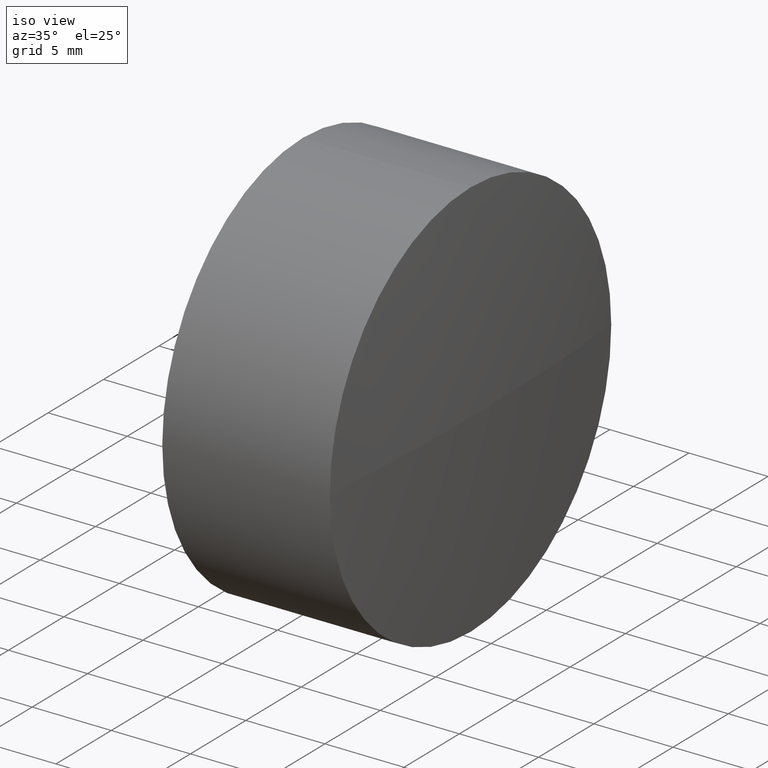
[diagram: clean part render]
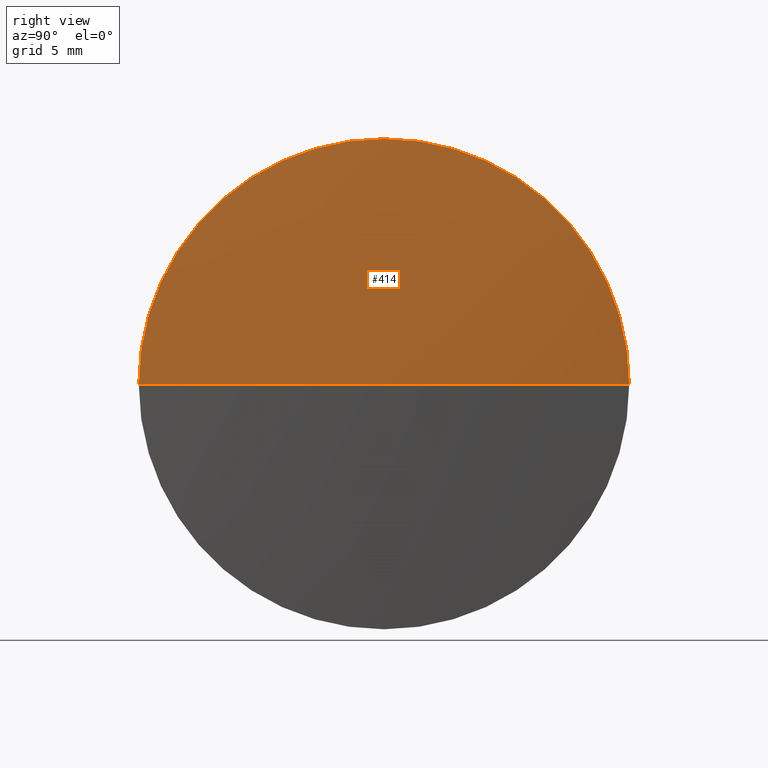
[diagram: tour spotlight — one face highlighted and labeled with its STEP entity id]
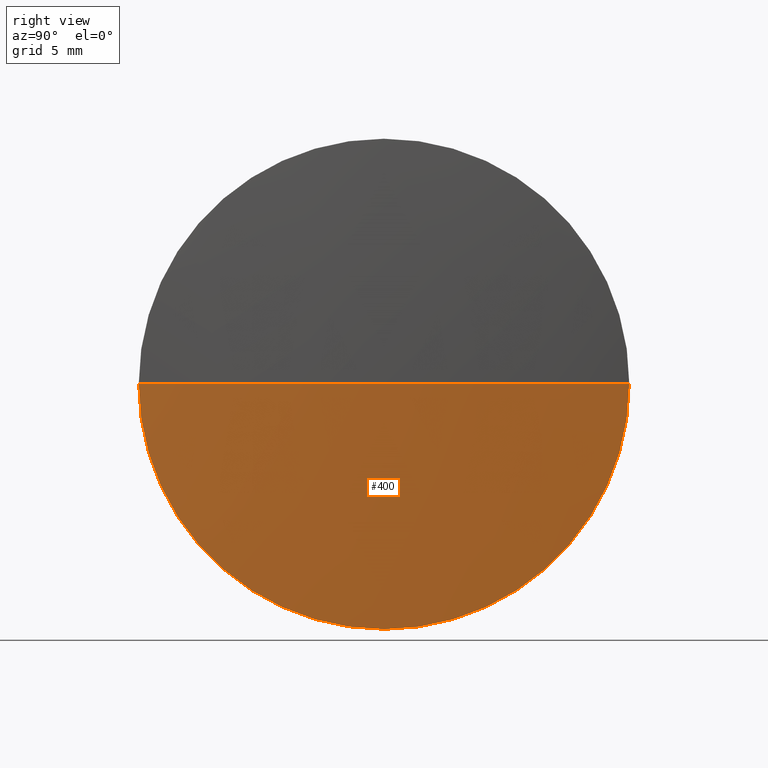
[diagram: tour spotlight — one face highlighted and labeled with its STEP entity id]
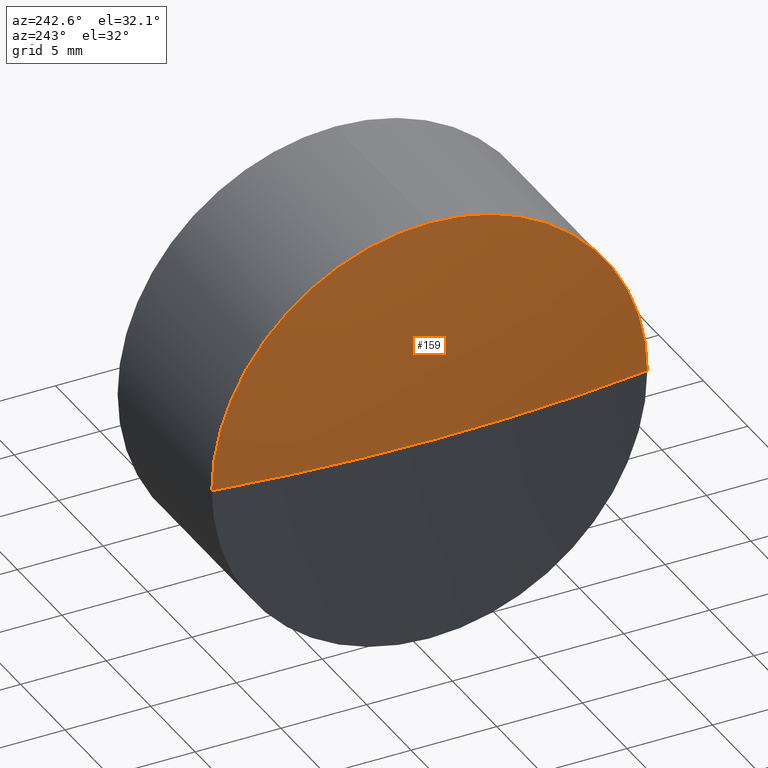
[diagram: tour spotlight — one face highlighted and labeled with its STEP entity id]
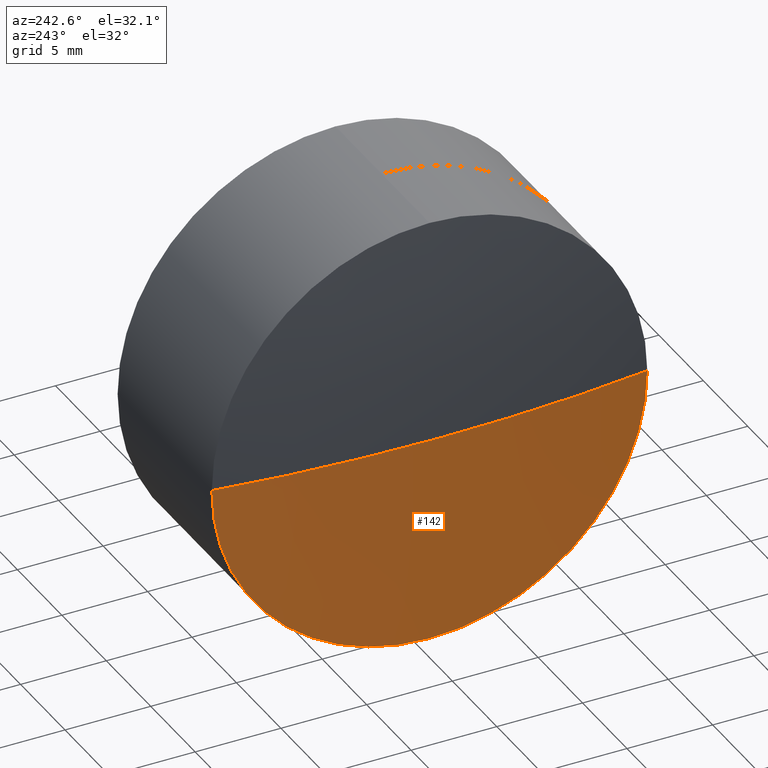
[diagram: tour spotlight — one face highlighted and labeled with its STEP entity id]
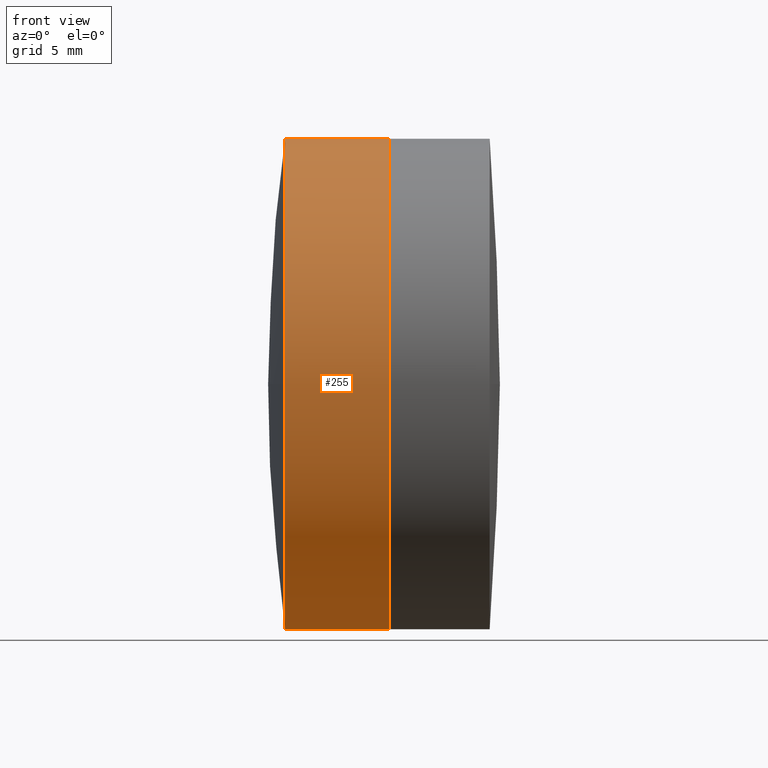
[diagram: tour spotlight — one face highlighted and labeled with its STEP entity id]
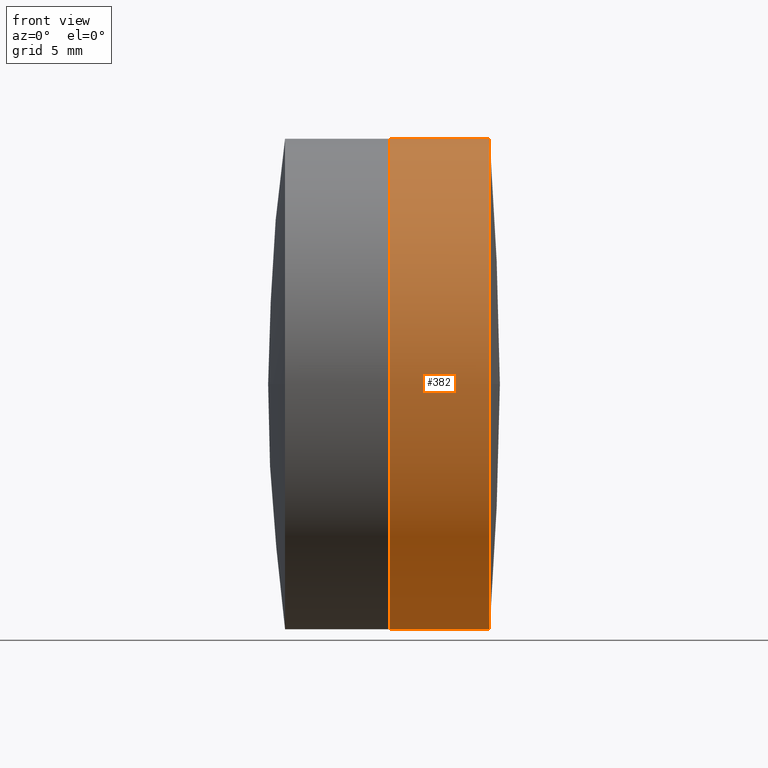
[diagram: tour spotlight — one face highlighted and labeled with its STEP entity id]
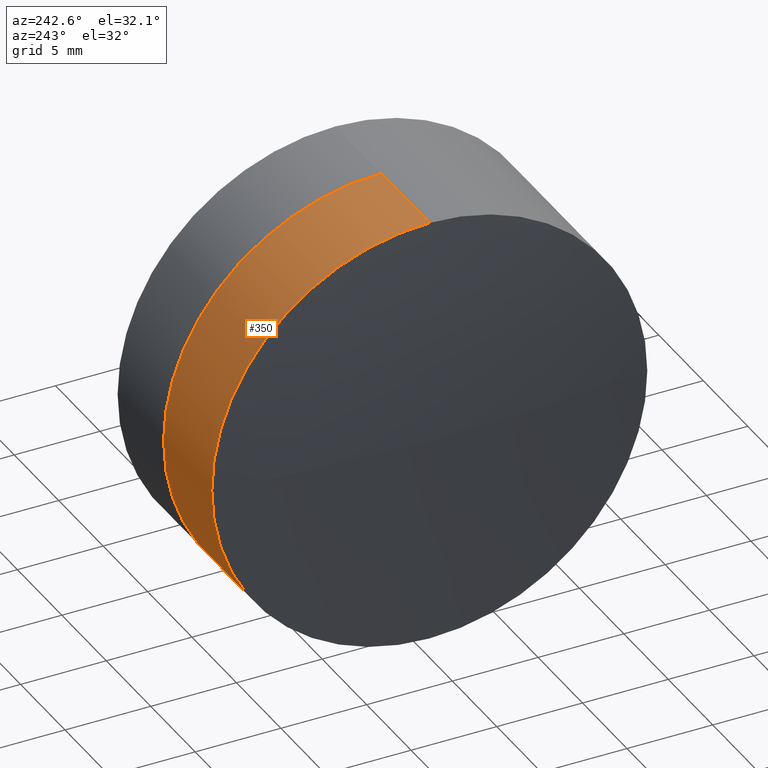
[diagram: tour spotlight — one face highlighted and labeled with its STEP entity id]
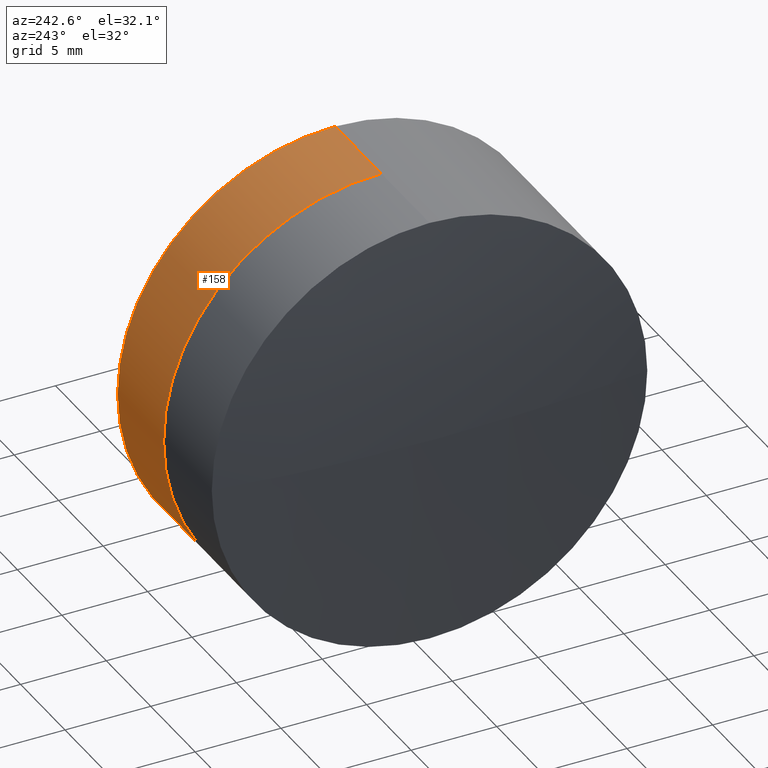
[diagram: tour spotlight — one face highlighted and labeled with its STEP entity id]
A machine part: a face-by-face anatomy tour. The part has 12 B-rep faces; the first image is the clean iso view, then the 8 largest visible faces are spotlighted one at a time (largest first), each with its STEP entity span.

Face 1 — right view, entity #414. In plain terms, the highlighted spherical surface has radius 152.82 mm.
Definition (entity closure, byte-faithful):
#4 = DIRECTION ( 'NONE',  ( -1.000000000000000000, -0.000000000000000000, -0.000000000000000000 ) ) ;
#6 = CARTESIAN_POINT ( 'NONE',  ( -90.98594420630271884, 14.56038547118956927, 0.000000000000000000 ) ) ;
#12 = ORIENTED_EDGE ( 'NONE', *, *, #36, .F. ) ;
#15 = VERTEX_POINT ( 'NONE', #348 ) ;
#21 = DIRECTION ( 'NONE',  ( -0.000000000000000000, 0.000000000000000000, -1.000000000000000000 ) ) ;
#36 = EDGE_CURVE ( 'NONE', #220, #15, #314, .T. ) ;
#83 = CARTESIAN_POINT ( 'NONE',  ( -90.98594420630271884, 14.56038547118956927, 0.000000000000000000 ) ) ;
#97 = DIRECTION ( 'NONE',  ( 0.000000000000000000, 1.000000000000000000, 1.224646799147353207E-16 ) ) ;
#101 = ORIENTED_EDGE ( 'NONE', *, *, #175, .T. ) ;
#105 = CIRCLE ( 'NONE', #353, 12.69999999999999929 ) ;
#111 = DIRECTION ( 'NONE',  ( 1.000000000000000000, 0.000000000000000000, 0.000000000000000000 ) ) ;
#114 = DIRECTION ( 'NONE',  ( -0.000000000000000000, 0.000000000000000000, 1.000000000000000000 ) ) ;
#120 = CARTESIAN_POINT ( 'NONE',  ( -90.98594420630270463, 27.26038547118939093, 0.000000000000000000 ) ) ;
#128 = EDGE_CURVE ( 'NONE', #15, #426, #174, .T. ) ;
#144 = AXIS2_PLACEMENT_3D ( 'NONE', #6, #4, #155 ) ;
#155 = DIRECTION ( 'NONE',  ( 0.000000000000000000, 0.000000000000000000, 1.000000000000000000 ) ) ;
#170 = ORIENTED_EDGE ( 'NONE', *, *, #128, .F. ) ;
#174 = CIRCLE ( 'NONE', #144, 12.69999999999999929 ) ;
#175 = EDGE_CURVE ( 'NONE', #220, #411, #418, .T. ) ;
#189 = CARTESIAN_POINT ( 'NONE',  ( -90.45731756671344215, 14.56038547118957815, 0.000000000000000000 ) ) ;
#205 = AXIS2_PLACEMENT_3D ( 'NONE', #284, #114, #111 ) ;
#220 = VERTEX_POINT ( 'NONE', #189 ) ;
#229 = DIRECTION ( 'NONE',  ( -1.000000000000000000, -0.000000000000000000, -0.000000000000000000 ) ) ;
#284 = CARTESIAN_POINT ( 'NONE',  ( -243.2773175667133785, 14.56038547118956927, 0.000000000000000000 ) ) ;
#293 = CARTESIAN_POINT ( 'NONE',  ( -90.98594420630271884, 14.56038547118956927, 12.69999999999999929 ) ) ;
#314 = CIRCLE ( 'NONE', #442, 152.8199999999999648 ) ;
#321 = ORIENTED_EDGE ( 'NONE', *, *, #417, .F. ) ;
#336 = CARTESIAN_POINT ( 'NONE',  ( -243.2773175667133785, 14.56038547118956927, 0.000000000000000000 ) ) ;
#339 = DIRECTION ( 'NONE',  ( 0.000000000000000000, 1.000000000000000000, 0.000000000000000000 ) ) ;
#345 = DIRECTION ( 'NONE',  ( 0.000000000000000000, 1.224646799147353207E-16, -1.000000000000000000 ) ) ;
#348 = CARTESIAN_POINT ( 'NONE',  ( -90.98594420630270463, 1.860385471189745177, -1.555301434917116936E-15 ) ) ;
#353 = AXIS2_PLACEMENT_3D ( 'NONE', #83, #229, #397 ) ;
#386 = EDGE_LOOP ( 'NONE', ( #12, #101, #321, #170 ) ) ;
#393 = FACE_OUTER_BOUND ( 'NONE', #386, .T. ) ;
#397 = DIRECTION ( 'NONE',  ( 0.000000000000000000, 0.000000000000000000, 1.000000000000000000 ) ) ;
#406 = SPHERICAL_SURFACE ( 'NONE', #416, 152.8199999999999648 ) ;
#410 = CARTESIAN_POINT ( 'NONE',  ( -243.2773175667133785, 14.56038547118956927, 0.000000000000000000 ) ) ;
#411 = VERTEX_POINT ( 'NONE', #120 ) ;
#414 = ADVANCED_FACE ( 'NONE', ( #393 ), #406, .T. ) ;
#416 = AXIS2_PLACEMENT_3D ( 'NONE', #336, #21, #339 ) ;
#417 = EDGE_CURVE ( 'NONE', #426, #411, #105, .T. ) ;
#418 = CIRCLE ( 'NONE', #205, 152.8199999999999648 ) ;
#426 = VERTEX_POINT ( 'NONE', #293 ) ;
#442 = AXIS2_PLACEMENT_3D ( 'NONE', #410, #345, #97 ) ;

Face 2 — right view, entity #400. In plain terms, the highlighted spherical surface has radius 152.82 mm.
Definition (entity closure, byte-faithful):
#15 = VERTEX_POINT ( 'NONE', #348 ) ;
#20 = CARTESIAN_POINT ( 'NONE',  ( -90.98594420630271884, 14.56038547118956927, 0.000000000000000000 ) ) ;
#28 = CARTESIAN_POINT ( 'NONE',  ( -243.2773175667133785, 14.56038547118956927, 0.000000000000000000 ) ) ;
#36 = EDGE_CURVE ( 'NONE', #220, #15, #314, .T. ) ;
#49 = CARTESIAN_POINT ( 'NONE',  ( -90.98594420630271884, 14.56038547118957105, -12.69999999999999929 ) ) ;
#76 = CARTESIAN_POINT ( 'NONE',  ( -90.98594420630271884, 14.56038547118956927, 0.000000000000000000 ) ) ;
#82 = DIRECTION ( 'NONE',  ( 0.000000000000000000, 0.000000000000000000, 1.000000000000000000 ) ) ;
#89 = DIRECTION ( 'NONE',  ( 0.000000000000000000, 1.000000000000000000, 0.000000000000000000 ) ) ;
#97 = DIRECTION ( 'NONE',  ( 0.000000000000000000, 1.000000000000000000, 1.224646799147353207E-16 ) ) ;
#111 = DIRECTION ( 'NONE',  ( 1.000000000000000000, 0.000000000000000000, 0.000000000000000000 ) ) ;
#114 = DIRECTION ( 'NONE',  ( -0.000000000000000000, 0.000000000000000000, 1.000000000000000000 ) ) ;
#120 = CARTESIAN_POINT ( 'NONE',  ( -90.98594420630270463, 27.26038547118939093, 0.000000000000000000 ) ) ;
#124 = DIRECTION ( 'NONE',  ( -1.000000000000000000, -0.000000000000000000, -0.000000000000000000 ) ) ;
#131 = FACE_OUTER_BOUND ( 'NONE', #136, .T. ) ;
#136 = EDGE_LOOP ( 'NONE', ( #180, #286, #378, #443 ) ) ;
#145 = AXIS2_PLACEMENT_3D ( 'NONE', #20, #124, #82 ) ;
#151 = VERTEX_POINT ( 'NONE', #49 ) ;
#161 = CIRCLE ( 'NONE', #145, 12.69999999999999929 ) ;
#175 = EDGE_CURVE ( 'NONE', #220, #411, #418, .T. ) ;
#180 = ORIENTED_EDGE ( 'NONE', *, *, #175, .F. ) ;
#189 = CARTESIAN_POINT ( 'NONE',  ( -90.45731756671344215, 14.56038547118957815, 0.000000000000000000 ) ) ;
#191 = EDGE_CURVE ( 'NONE', #411, #151, #288, .T. ) ;
#194 = DIRECTION ( 'NONE',  ( -0.000000000000000000, 0.000000000000000000, -1.000000000000000000 ) ) ;
#205 = AXIS2_PLACEMENT_3D ( 'NONE', #284, #114, #111 ) ;
#220 = VERTEX_POINT ( 'NONE', #189 ) ;
#252 = DIRECTION ( 'NONE',  ( -1.000000000000000000, -0.000000000000000000, -0.000000000000000000 ) ) ;
#272 = EDGE_CURVE ( 'NONE', #151, #15, #161, .T. ) ;
#284 = CARTESIAN_POINT ( 'NONE',  ( -243.2773175667133785, 14.56038547118956927, 0.000000000000000000 ) ) ;
#286 = ORIENTED_EDGE ( 'NONE', *, *, #36, .T. ) ;
#288 = CIRCLE ( 'NONE', #349, 12.69999999999999929 ) ;
#314 = CIRCLE ( 'NONE', #442, 152.8199999999999648 ) ;
#319 = AXIS2_PLACEMENT_3D ( 'NONE', #28, #194, #89 ) ;
#345 = DIRECTION ( 'NONE',  ( 0.000000000000000000, 1.224646799147353207E-16, -1.000000000000000000 ) ) ;
#348 = CARTESIAN_POINT ( 'NONE',  ( -90.98594420630270463, 1.860385471189745177, -1.555301434917116936E-15 ) ) ;
#349 = AXIS2_PLACEMENT_3D ( 'NONE', #76, #252, #390 ) ;
#366 = SPHERICAL_SURFACE ( 'NONE', #319, 152.8199999999999648 ) ;
#378 = ORIENTED_EDGE ( 'NONE', *, *, #272, .F. ) ;
#390 = DIRECTION ( 'NONE',  ( 0.000000000000000000, 0.000000000000000000, 1.000000000000000000 ) ) ;
#400 = ADVANCED_FACE ( 'NONE', ( #131 ), #366, .T. ) ;
#410 = CARTESIAN_POINT ( 'NONE',  ( -243.2773175667133785, 14.56038547118956927, 0.000000000000000000 ) ) ;
#411 = VERTEX_POINT ( 'NONE', #120 ) ;
#418 = CIRCLE ( 'NONE', #205, 152.8199999999999648 ) ;
#442 = AXIS2_PLACEMENT_3D ( 'NONE', #410, #345, #97 ) ;
#443 = ORIENTED_EDGE ( 'NONE', *, *, #191, .F. ) ;

Face 3 — auxiliary view, entity #159. In plain terms, the highlighted spherical surface has radius 92.4 mm.
Definition (entity closure, byte-faithful):
#8 = VERTEX_POINT ( 'NONE', #307 ) ;
#13 = DIRECTION ( 'NONE',  ( -0.000000000000000000, 0.000000000000000000, 1.000000000000000000 ) ) ;
#45 = VERTEX_POINT ( 'NONE', #64 ) ;
#50 = ORIENTED_EDGE ( 'NONE', *, *, #446, .F. ) ;
#60 = DIRECTION ( 'NONE',  ( 0.000000000000000000, 1.224646799147353207E-16, -1.000000000000000000 ) ) ;
#64 = CARTESIAN_POINT ( 'NONE',  ( -102.4573175667134137, 14.56038547118957460, 0.000000000000000000 ) ) ;
#92 = CARTESIAN_POINT ( 'NONE',  ( -10.05731756671340804, 14.56038547118956927, 0.000000000000000000 ) ) ;
#104 = AXIS2_PLACEMENT_3D ( 'NONE', #183, #287, #384 ) ;
#117 = CARTESIAN_POINT ( 'NONE',  ( -101.5803747708955740, 1.860385471189575091, -1.555301434917137841E-15 ) ) ;
#141 = EDGE_CURVE ( 'NONE', #8, #153, #425, .T. ) ;
#153 = VERTEX_POINT ( 'NONE', #324 ) ;
#159 = ADVANCED_FACE ( 'NONE', ( #217 ), #427, .T. ) ;
#177 = DIRECTION ( 'NONE',  ( -0.000000000000000000, 0.000000000000000000, -1.000000000000000000 ) ) ;
#179 = CIRCLE ( 'NONE', #259, 92.40000000000000568 ) ;
#183 = CARTESIAN_POINT ( 'NONE',  ( -101.5803747708955882, 14.56038547118956927, 0.000000000000000000 ) ) ;
#217 = FACE_OUTER_BOUND ( 'NONE', #275, .T. ) ;
#231 = CARTESIAN_POINT ( 'NONE',  ( -101.5803747708955882, 14.56038547118956927, 0.000000000000000000 ) ) ;
#233 = AXIS2_PLACEMENT_3D ( 'NONE', #280, #177, #420 ) ;
#235 = ORIENTED_EDGE ( 'NONE', *, *, #246, .T. ) ;
#237 = ORIENTED_EDGE ( 'NONE', *, *, #141, .T. ) ;
#246 = EDGE_CURVE ( 'NONE', #412, #8, #380, .T. ) ;
#259 = AXIS2_PLACEMENT_3D ( 'NONE', #361, #13, #437 ) ;
#275 = EDGE_LOOP ( 'NONE', ( #50, #235, #237, #383 ) ) ;
#280 = CARTESIAN_POINT ( 'NONE',  ( -10.05731756671340804, 14.56038547118956927, 0.000000000000000000 ) ) ;
#287 = DIRECTION ( 'NONE',  ( -1.000000000000000000, -0.000000000000000000, -0.000000000000000000 ) ) ;
#296 = DIRECTION ( 'NONE',  ( 0.000000000000000000, 1.000000000000000000, 1.224646799147353454E-16 ) ) ;
#307 = CARTESIAN_POINT ( 'NONE',  ( -101.5803747708955882, 14.56038547118956927, 12.69999999999999929 ) ) ;
#309 = EDGE_CURVE ( 'NONE', #153, #45, #179, .T. ) ;
#324 = CARTESIAN_POINT ( 'NONE',  ( -101.5803747708955740, 27.26038547118956501, 0.000000000000000000 ) ) ;
#326 = AXIS2_PLACEMENT_3D ( 'NONE', #92, #60, #296 ) ;
#361 = CARTESIAN_POINT ( 'NONE',  ( -10.05731756671340804, 14.56038547118956927, 0.000000000000000000 ) ) ;
#369 = DIRECTION ( 'NONE',  ( 0.000000000000000000, 0.000000000000000000, 1.000000000000000000 ) ) ;
#370 = CIRCLE ( 'NONE', #326, 92.40000000000000568 ) ;
#380 = CIRCLE ( 'NONE', #436, 12.69999999999999929 ) ;
#383 = ORIENTED_EDGE ( 'NONE', *, *, #309, .T. ) ;
#384 = DIRECTION ( 'NONE',  ( 0.000000000000000000, 0.000000000000000000, 1.000000000000000000 ) ) ;
#412 = VERTEX_POINT ( 'NONE', #117 ) ;
#420 = DIRECTION ( 'NONE',  ( 0.000000000000000000, 1.000000000000000000, 0.000000000000000000 ) ) ;
#425 = CIRCLE ( 'NONE', #104, 12.69999999999999929 ) ;
#427 = SPHERICAL_SURFACE ( 'NONE', #233, 92.40000000000000568 ) ;
#434 = DIRECTION ( 'NONE',  ( -1.000000000000000000, -0.000000000000000000, -0.000000000000000000 ) ) ;
#436 = AXIS2_PLACEMENT_3D ( 'NONE', #231, #434, #369 ) ;
#437 = DIRECTION ( 'NONE',  ( 1.000000000000000000, 0.000000000000000000, 0.000000000000000000 ) ) ;
#446 = EDGE_CURVE ( 'NONE', #412, #45, #370, .T. ) ;

Face 4 — auxiliary view, entity #142. In plain terms, the highlighted spherical surface has radius 92.4 mm.
Definition (entity closure, byte-faithful):
#5 = ORIENTED_EDGE ( 'NONE', *, *, #72, .T. ) ;
#10 = FACE_OUTER_BOUND ( 'NONE', #413, .T. ) ;
#13 = DIRECTION ( 'NONE',  ( -0.000000000000000000, 0.000000000000000000, 1.000000000000000000 ) ) ;
#34 = ORIENTED_EDGE ( 'NONE', *, *, #446, .T. ) ;
#40 = EDGE_CURVE ( 'NONE', #276, #412, #244, .T. ) ;
#45 = VERTEX_POINT ( 'NONE', #64 ) ;
#60 = DIRECTION ( 'NONE',  ( 0.000000000000000000, 1.224646799147353207E-16, -1.000000000000000000 ) ) ;
#63 = ORIENTED_EDGE ( 'NONE', *, *, #309, .F. ) ;
#64 = CARTESIAN_POINT ( 'NONE',  ( -102.4573175667134137, 14.56038547118957460, 0.000000000000000000 ) ) ;
#72 = EDGE_CURVE ( 'NONE', #153, #276, #106, .T. ) ;
#84 = DIRECTION ( 'NONE',  ( -0.000000000000000000, 0.000000000000000000, -1.000000000000000000 ) ) ;
#92 = CARTESIAN_POINT ( 'NONE',  ( -10.05731756671340804, 14.56038547118956927, 0.000000000000000000 ) ) ;
#106 = CIRCLE ( 'NONE', #241, 12.69999999999999929 ) ;
#109 = DIRECTION ( 'NONE',  ( 0.000000000000000000, 0.000000000000000000, 1.000000000000000000 ) ) ;
#117 = CARTESIAN_POINT ( 'NONE',  ( -101.5803747708955740, 1.860385471189575091, -1.555301434917137841E-15 ) ) ;
#137 = DIRECTION ( 'NONE',  ( 0.000000000000000000, 0.000000000000000000, 1.000000000000000000 ) ) ;
#142 = ADVANCED_FACE ( 'NONE', ( #10 ), #359, .T. ) ;
#152 = DIRECTION ( 'NONE',  ( -1.000000000000000000, -0.000000000000000000, -0.000000000000000000 ) ) ;
#153 = VERTEX_POINT ( 'NONE', #324 ) ;
#179 = CIRCLE ( 'NONE', #259, 92.40000000000000568 ) ;
#181 = CARTESIAN_POINT ( 'NONE',  ( -101.5803747708955882, 14.56038547118956927, 0.000000000000000000 ) ) ;
#186 = DIRECTION ( 'NONE',  ( 0.000000000000000000, 1.000000000000000000, 0.000000000000000000 ) ) ;
#198 = AXIS2_PLACEMENT_3D ( 'NONE', #236, #377, #137 ) ;
#219 = CARTESIAN_POINT ( 'NONE',  ( -10.05731756671340804, 14.56038547118956927, 0.000000000000000000 ) ) ;
#221 = CARTESIAN_POINT ( 'NONE',  ( -101.5803747708955882, 14.56038547118957105, -12.69999999999999929 ) ) ;
#236 = CARTESIAN_POINT ( 'NONE',  ( -101.5803747708955882, 14.56038547118956927, 0.000000000000000000 ) ) ;
#241 = AXIS2_PLACEMENT_3D ( 'NONE', #181, #152, #109 ) ;
#244 = CIRCLE ( 'NONE', #198, 12.69999999999999929 ) ;
#249 = AXIS2_PLACEMENT_3D ( 'NONE', #219, #84, #186 ) ;
#259 = AXIS2_PLACEMENT_3D ( 'NONE', #361, #13, #437 ) ;
#276 = VERTEX_POINT ( 'NONE', #221 ) ;
#296 = DIRECTION ( 'NONE',  ( 0.000000000000000000, 1.000000000000000000, 1.224646799147353454E-16 ) ) ;
#309 = EDGE_CURVE ( 'NONE', #153, #45, #179, .T. ) ;
#324 = CARTESIAN_POINT ( 'NONE',  ( -101.5803747708955740, 27.26038547118956501, 0.000000000000000000 ) ) ;
#326 = AXIS2_PLACEMENT_3D ( 'NONE', #92, #60, #296 ) ;
#359 = SPHERICAL_SURFACE ( 'NONE', #249, 92.40000000000000568 ) ;
#361 = CARTESIAN_POINT ( 'NONE',  ( -10.05731756671340804, 14.56038547118956927, 0.000000000000000000 ) ) ;
#370 = CIRCLE ( 'NONE', #326, 92.40000000000000568 ) ;
#376 = ORIENTED_EDGE ( 'NONE', *, *, #40, .T. ) ;
#377 = DIRECTION ( 'NONE',  ( -1.000000000000000000, -0.000000000000000000, -0.000000000000000000 ) ) ;
#412 = VERTEX_POINT ( 'NONE', #117 ) ;
#413 = EDGE_LOOP ( 'NONE', ( #5, #376, #34, #63 ) ) ;
#437 = DIRECTION ( 'NONE',  ( 1.000000000000000000, 0.000000000000000000, 0.000000000000000000 ) ) ;
#446 = EDGE_CURVE ( 'NONE', #412, #45, #370, .T. ) ;

Face 5 — front view, entity #255. In plain terms, the highlighted cylindrical surface (partial cylindrical patch) has radius 12.7 mm, axis along (-1, -0, -0).
Definition (entity closure, byte-faithful):
#8 = VERTEX_POINT ( 'NONE', #307 ) ;
#9 = VERTEX_POINT ( 'NONE', #135 ) ;
#18 = CARTESIAN_POINT ( 'NONE',  ( -96.16127642721875191, 14.56038547118957105, -12.69999999999999929 ) ) ;
#23 = DIRECTION ( 'NONE',  ( 0.000000000000000000, 0.000000000000000000, 1.000000000000000000 ) ) ;
#40 = EDGE_CURVE ( 'NONE', #276, #412, #244, .T. ) ;
#54 = CARTESIAN_POINT ( 'NONE',  ( -102.4573175667134137, 14.56038547118956927, 12.69999999999999929 ) ) ;
#67 = EDGE_CURVE ( 'NONE', #445, #276, #100, .T. ) ;
#68 = EDGE_CURVE ( 'NONE', #9, #8, #148, .T. ) ;
#77 = VECTOR ( 'NONE', #213, 1000.000000000000000 ) ;
#78 = EDGE_LOOP ( 'NONE', ( #342, #357, #113, #187, #421, #79 ) ) ;
#79 = ORIENTED_EDGE ( 'NONE', *, *, #40, .F. ) ;
#91 = CYLINDRICAL_SURFACE ( 'NONE', #215, 12.69999999999999929 ) ;
#98 = EDGE_CURVE ( 'NONE', #271, #9, #188, .T. ) ;
#100 = LINE ( 'NONE', #238, #268 ) ;
#113 = ORIENTED_EDGE ( 'NONE', *, *, #98, .T. ) ;
#116 = DIRECTION ( 'NONE',  ( -1.000000000000000000, -0.000000000000000000, -0.000000000000000000 ) ) ;
#117 = CARTESIAN_POINT ( 'NONE',  ( -101.5803747708955740, 1.860385471189575091, -1.555301434917137841E-15 ) ) ;
#119 = CARTESIAN_POINT ( 'NONE',  ( -96.16127642721875191, 14.56038547118956927, 0.000000000000000000 ) ) ;
#130 = DIRECTION ( 'NONE',  ( 0.000000000000000000, 0.000000000000000000, 1.000000000000000000 ) ) ;
#135 = CARTESIAN_POINT ( 'NONE',  ( -96.16127642721875191, 14.56038547118956927, 12.69999999999999929 ) ) ;
#137 = DIRECTION ( 'NONE',  ( 0.000000000000000000, 0.000000000000000000, 1.000000000000000000 ) ) ;
#140 = CIRCLE ( 'NONE', #211, 12.69999999999999929 ) ;
#148 = LINE ( 'NONE', #54, #77 ) ;
#178 = AXIS2_PLACEMENT_3D ( 'NONE', #291, #248, #422 ) ;
#187 = ORIENTED_EDGE ( 'NONE', *, *, #68, .T. ) ;
#188 = CIRCLE ( 'NONE', #178, 12.69999999999999929 ) ;
#198 = AXIS2_PLACEMENT_3D ( 'NONE', #236, #377, #137 ) ;
#211 = AXIS2_PLACEMENT_3D ( 'NONE', #119, #116, #23 ) ;
#213 = DIRECTION ( 'NONE',  ( -1.000000000000000000, -0.000000000000000000, -0.000000000000000000 ) ) ;
#215 = AXIS2_PLACEMENT_3D ( 'NONE', #429, #226, #130 ) ;
#221 = CARTESIAN_POINT ( 'NONE',  ( -101.5803747708955882, 14.56038547118957105, -12.69999999999999929 ) ) ;
#226 = DIRECTION ( 'NONE',  ( -1.000000000000000000, -0.000000000000000000, -0.000000000000000000 ) ) ;
#231 = CARTESIAN_POINT ( 'NONE',  ( -101.5803747708955882, 14.56038547118956927, 0.000000000000000000 ) ) ;
#236 = CARTESIAN_POINT ( 'NONE',  ( -101.5803747708955882, 14.56038547118956927, 0.000000000000000000 ) ) ;
#238 = CARTESIAN_POINT ( 'NONE',  ( -102.4573175667134137, 14.56038547118957105, -12.69999999999999929 ) ) ;
#239 = EDGE_CURVE ( 'NONE', #445, #271, #140, .T. ) ;
#244 = CIRCLE ( 'NONE', #198, 12.69999999999999929 ) ;
#246 = EDGE_CURVE ( 'NONE', #412, #8, #380, .T. ) ;
#248 = DIRECTION ( 'NONE',  ( -1.000000000000000000, -0.000000000000000000, -0.000000000000000000 ) ) ;
#255 = ADVANCED_FACE ( 'NONE', ( #392 ), #91, .T. ) ;
#268 = VECTOR ( 'NONE', #379, 1000.000000000000000 ) ;
#271 = VERTEX_POINT ( 'NONE', #300 ) ;
#276 = VERTEX_POINT ( 'NONE', #221 ) ;
#291 = CARTESIAN_POINT ( 'NONE',  ( -96.16127642721875191, 14.56038547118956927, 0.000000000000000000 ) ) ;
#300 = CARTESIAN_POINT ( 'NONE',  ( -96.16127642721875191, 1.860385471189574424, -1.555301434917137841E-15 ) ) ;
#307 = CARTESIAN_POINT ( 'NONE',  ( -101.5803747708955882, 14.56038547118956927, 12.69999999999999929 ) ) ;
#342 = ORIENTED_EDGE ( 'NONE', *, *, #67, .F. ) ;
#357 = ORIENTED_EDGE ( 'NONE', *, *, #239, .T. ) ;
#369 = DIRECTION ( 'NONE',  ( 0.000000000000000000, 0.000000000000000000, 1.000000000000000000 ) ) ;
#377 = DIRECTION ( 'NONE',  ( -1.000000000000000000, -0.000000000000000000, -0.000000000000000000 ) ) ;
#379 = DIRECTION ( 'NONE',  ( -1.000000000000000000, -0.000000000000000000, -0.000000000000000000 ) ) ;
#380 = CIRCLE ( 'NONE', #436, 12.69999999999999929 ) ;
#392 = FACE_OUTER_BOUND ( 'NONE', #78, .T. ) ;
#412 = VERTEX_POINT ( 'NONE', #117 ) ;
#421 = ORIENTED_EDGE ( 'NONE', *, *, #246, .F. ) ;
#422 = DIRECTION ( 'NONE',  ( 0.000000000000000000, 0.000000000000000000, 1.000000000000000000 ) ) ;
#429 = CARTESIAN_POINT ( 'NONE',  ( -102.4573175667134137, 14.56038547118956927, 0.000000000000000000 ) ) ;
#434 = DIRECTION ( 'NONE',  ( -1.000000000000000000, -0.000000000000000000, -0.000000000000000000 ) ) ;
#436 = AXIS2_PLACEMENT_3D ( 'NONE', #231, #434, #369 ) ;
#445 = VERTEX_POINT ( 'NONE', #18 ) ;

Face 6 — front view, entity #382. In plain terms, the highlighted cylindrical surface (partial cylindrical patch) has radius 12.7 mm, axis along (-1, -0, -0).
Definition (entity closure, byte-faithful):
#4 = DIRECTION ( 'NONE',  ( -1.000000000000000000, -0.000000000000000000, -0.000000000000000000 ) ) ;
#6 = CARTESIAN_POINT ( 'NONE',  ( -90.98594420630271884, 14.56038547118956927, 0.000000000000000000 ) ) ;
#15 = VERTEX_POINT ( 'NONE', #348 ) ;
#16 = EDGE_CURVE ( 'NONE', #212, #103, #419, .T. ) ;
#20 = CARTESIAN_POINT ( 'NONE',  ( -90.98594420630271884, 14.56038547118956927, 0.000000000000000000 ) ) ;
#37 = DIRECTION ( 'NONE',  ( 0.000000000000000000, 0.000000000000000000, 1.000000000000000000 ) ) ;
#41 = VECTOR ( 'NONE', #228, 1000.000000000000000 ) ;
#43 = ORIENTED_EDGE ( 'NONE', *, *, #316, .F. ) ;
#49 = CARTESIAN_POINT ( 'NONE',  ( -90.98594420630271884, 14.56038547118957105, -12.69999999999999929 ) ) ;
#52 = AXIS2_PLACEMENT_3D ( 'NONE', #270, #69, #37 ) ;
#55 = FACE_OUTER_BOUND ( 'NONE', #428, .T. ) ;
#69 = DIRECTION ( 'NONE',  ( -1.000000000000000000, -0.000000000000000000, -0.000000000000000000 ) ) ;
#82 = DIRECTION ( 'NONE',  ( 0.000000000000000000, 0.000000000000000000, 1.000000000000000000 ) ) ;
#88 = DIRECTION ( 'NONE',  ( -1.000000000000000000, -0.000000000000000000, -0.000000000000000000 ) ) ;
#103 = VERTEX_POINT ( 'NONE', #320 ) ;
#108 = EDGE_CURVE ( 'NONE', #103, #391, #224, .T. ) ;
#110 = ORIENTED_EDGE ( 'NONE', *, *, #128, .T. ) ;
#124 = DIRECTION ( 'NONE',  ( -1.000000000000000000, -0.000000000000000000, -0.000000000000000000 ) ) ;
#128 = EDGE_CURVE ( 'NONE', #15, #426, #174, .T. ) ;
#138 = ORIENTED_EDGE ( 'NONE', *, *, #272, .T. ) ;
#144 = AXIS2_PLACEMENT_3D ( 'NONE', #6, #4, #155 ) ;
#145 = AXIS2_PLACEMENT_3D ( 'NONE', #20, #124, #82 ) ;
#146 = CARTESIAN_POINT ( 'NONE',  ( -96.16127642721875191, 14.56038547118956927, 0.000000000000000000 ) ) ;
#151 = VERTEX_POINT ( 'NONE', #49 ) ;
#155 = DIRECTION ( 'NONE',  ( 0.000000000000000000, 0.000000000000000000, 1.000000000000000000 ) ) ;
#161 = CIRCLE ( 'NONE', #145, 12.69999999999999929 ) ;
#162 = DIRECTION ( 'NONE',  ( 0.000000000000000000, 0.000000000000000000, 1.000000000000000000 ) ) ;
#174 = CIRCLE ( 'NONE', #144, 12.69999999999999929 ) ;
#193 = CYLINDRICAL_SURFACE ( 'NONE', #242, 12.69999999999999929 ) ;
#199 = LINE ( 'NONE', #263, #41 ) ;
#212 = VERTEX_POINT ( 'NONE', #394 ) ;
#224 = CIRCLE ( 'NONE', #298, 12.69999999999999929 ) ;
#228 = DIRECTION ( 'NONE',  ( -1.000000000000000000, -0.000000000000000000, -0.000000000000000000 ) ) ;
#242 = AXIS2_PLACEMENT_3D ( 'NONE', #332, #444, #162 ) ;
#253 = ORIENTED_EDGE ( 'NONE', *, *, #16, .F. ) ;
#263 = CARTESIAN_POINT ( 'NONE',  ( -94.45731756671341373, 14.56038547118956927, 12.69999999999999929 ) ) ;
#264 = CARTESIAN_POINT ( 'NONE',  ( -96.16127642721875191, 14.56038547118956927, 12.69999999999999929 ) ) ;
#270 = CARTESIAN_POINT ( 'NONE',  ( -96.16127642721875191, 14.56038547118956927, 0.000000000000000000 ) ) ;
#272 = EDGE_CURVE ( 'NONE', #151, #15, #161, .T. ) ;
#289 = ORIENTED_EDGE ( 'NONE', *, *, #335, .T. ) ;
#293 = CARTESIAN_POINT ( 'NONE',  ( -90.98594420630271884, 14.56038547118956927, 12.69999999999999929 ) ) ;
#298 = AXIS2_PLACEMENT_3D ( 'NONE', #146, #356, #387 ) ;
#316 = EDGE_CURVE ( 'NONE', #151, #212, #403, .T. ) ;
#320 = CARTESIAN_POINT ( 'NONE',  ( -96.16127642721875191, 1.860385471189574424, -1.555301434917137841E-15 ) ) ;
#332 = CARTESIAN_POINT ( 'NONE',  ( -94.45731756671341373, 14.56038547118956927, 0.000000000000000000 ) ) ;
#335 = EDGE_CURVE ( 'NONE', #426, #391, #199, .T. ) ;
#348 = CARTESIAN_POINT ( 'NONE',  ( -90.98594420630270463, 1.860385471189745177, -1.555301434917116936E-15 ) ) ;
#355 = ORIENTED_EDGE ( 'NONE', *, *, #108, .F. ) ;
#356 = DIRECTION ( 'NONE',  ( -1.000000000000000000, -0.000000000000000000, -0.000000000000000000 ) ) ;
#371 = CARTESIAN_POINT ( 'NONE',  ( -94.45731756671341373, 14.56038547118957105, -12.69999999999999929 ) ) ;
#382 = ADVANCED_FACE ( 'NONE', ( #55 ), #193, .T. ) ;
#387 = DIRECTION ( 'NONE',  ( 0.000000000000000000, 0.000000000000000000, 1.000000000000000000 ) ) ;
#391 = VERTEX_POINT ( 'NONE', #264 ) ;
#394 = CARTESIAN_POINT ( 'NONE',  ( -96.16127642721875191, 14.56038547118957105, -12.69999999999999929 ) ) ;
#401 = VECTOR ( 'NONE', #88, 1000.000000000000000 ) ;
#403 = LINE ( 'NONE', #371, #401 ) ;
#419 = CIRCLE ( 'NONE', #52, 12.69999999999999929 ) ;
#426 = VERTEX_POINT ( 'NONE', #293 ) ;
#428 = EDGE_LOOP ( 'NONE', ( #43, #138, #110, #289, #355, #253 ) ) ;
#444 = DIRECTION ( 'NONE',  ( -1.000000000000000000, -0.000000000000000000, -0.000000000000000000 ) ) ;

Face 7 — auxiliary view, entity #350. In plain terms, the highlighted cylindrical surface (partial cylindrical patch) has radius 12.7 mm, axis along (-1, -0, -0).
Definition (entity closure, byte-faithful):
#8 = VERTEX_POINT ( 'NONE', #307 ) ;
#9 = VERTEX_POINT ( 'NONE', #135 ) ;
#14 = CARTESIAN_POINT ( 'NONE',  ( -96.16127642721875191, 27.26038547118956501, 0.000000000000000000 ) ) ;
#17 = DIRECTION ( 'NONE',  ( 0.000000000000000000, 0.000000000000000000, 1.000000000000000000 ) ) ;
#18 = CARTESIAN_POINT ( 'NONE',  ( -96.16127642721875191, 14.56038547118957105, -12.69999999999999929 ) ) ;
#39 = DIRECTION ( 'NONE',  ( -1.000000000000000000, -0.000000000000000000, -0.000000000000000000 ) ) ;
#51 = CARTESIAN_POINT ( 'NONE',  ( -102.4573175667134137, 14.56038547118956927, 0.000000000000000000 ) ) ;
#54 = CARTESIAN_POINT ( 'NONE',  ( -102.4573175667134137, 14.56038547118956927, 12.69999999999999929 ) ) ;
#67 = EDGE_CURVE ( 'NONE', #445, #276, #100, .T. ) ;
#68 = EDGE_CURVE ( 'NONE', #9, #8, #148, .T. ) ;
#70 = AXIS2_PLACEMENT_3D ( 'NONE', #51, #330, #17 ) ;
#72 = EDGE_CURVE ( 'NONE', #153, #276, #106, .T. ) ;
#77 = VECTOR ( 'NONE', #213, 1000.000000000000000 ) ;
#81 = ORIENTED_EDGE ( 'NONE', *, *, #67, .T. ) ;
#100 = LINE ( 'NONE', #238, #268 ) ;
#104 = AXIS2_PLACEMENT_3D ( 'NONE', #183, #287, #384 ) ;
#106 = CIRCLE ( 'NONE', #241, 12.69999999999999929 ) ;
#109 = DIRECTION ( 'NONE',  ( 0.000000000000000000, 0.000000000000000000, 1.000000000000000000 ) ) ;
#118 = CARTESIAN_POINT ( 'NONE',  ( -96.16127642721875191, 14.56038547118956927, 0.000000000000000000 ) ) ;
#125 = AXIS2_PLACEMENT_3D ( 'NONE', #292, #431, #396 ) ;
#135 = CARTESIAN_POINT ( 'NONE',  ( -96.16127642721875191, 14.56038547118956927, 12.69999999999999929 ) ) ;
#141 = EDGE_CURVE ( 'NONE', #8, #153, #425, .T. ) ;
#148 = LINE ( 'NONE', #54, #77 ) ;
#152 = DIRECTION ( 'NONE',  ( -1.000000000000000000, -0.000000000000000000, -0.000000000000000000 ) ) ;
#153 = VERTEX_POINT ( 'NONE', #324 ) ;
#181 = CARTESIAN_POINT ( 'NONE',  ( -101.5803747708955882, 14.56038547118956927, 0.000000000000000000 ) ) ;
#183 = CARTESIAN_POINT ( 'NONE',  ( -101.5803747708955882, 14.56038547118956927, 0.000000000000000000 ) ) ;
#204 = VERTEX_POINT ( 'NONE', #14 ) ;
#208 = EDGE_CURVE ( 'NONE', #9, #204, #409, .T. ) ;
#213 = DIRECTION ( 'NONE',  ( -1.000000000000000000, -0.000000000000000000, -0.000000000000000000 ) ) ;
#216 = ORIENTED_EDGE ( 'NONE', *, *, #141, .F. ) ;
#221 = CARTESIAN_POINT ( 'NONE',  ( -101.5803747708955882, 14.56038547118957105, -12.69999999999999929 ) ) ;
#238 = CARTESIAN_POINT ( 'NONE',  ( -102.4573175667134137, 14.56038547118957105, -12.69999999999999929 ) ) ;
#241 = AXIS2_PLACEMENT_3D ( 'NONE', #181, #152, #109 ) ;
#251 = ORIENTED_EDGE ( 'NONE', *, *, #367, .T. ) ;
#256 = DIRECTION ( 'NONE',  ( 0.000000000000000000, 0.000000000000000000, 1.000000000000000000 ) ) ;
#268 = VECTOR ( 'NONE', #379, 1000.000000000000000 ) ;
#276 = VERTEX_POINT ( 'NONE', #221 ) ;
#285 = EDGE_LOOP ( 'NONE', ( #251, #81, #352, #216, #308, #323 ) ) ;
#287 = DIRECTION ( 'NONE',  ( -1.000000000000000000, -0.000000000000000000, -0.000000000000000000 ) ) ;
#290 = CYLINDRICAL_SURFACE ( 'NONE', #70, 12.69999999999999929 ) ;
#292 = CARTESIAN_POINT ( 'NONE',  ( -96.16127642721875191, 14.56038547118956927, 0.000000000000000000 ) ) ;
#299 = CIRCLE ( 'NONE', #125, 12.69999999999999929 ) ;
#307 = CARTESIAN_POINT ( 'NONE',  ( -101.5803747708955882, 14.56038547118956927, 12.69999999999999929 ) ) ;
#308 = ORIENTED_EDGE ( 'NONE', *, *, #68, .F. ) ;
#323 = ORIENTED_EDGE ( 'NONE', *, *, #208, .T. ) ;
#324 = CARTESIAN_POINT ( 'NONE',  ( -101.5803747708955740, 27.26038547118956501, 0.000000000000000000 ) ) ;
#330 = DIRECTION ( 'NONE',  ( -1.000000000000000000, -0.000000000000000000, -0.000000000000000000 ) ) ;
#338 = FACE_OUTER_BOUND ( 'NONE', #285, .T. ) ;
#350 = ADVANCED_FACE ( 'NONE', ( #338 ), #290, .T. ) ;
#352 = ORIENTED_EDGE ( 'NONE', *, *, #72, .F. ) ;
#367 = EDGE_CURVE ( 'NONE', #204, #445, #299, .T. ) ;
#379 = DIRECTION ( 'NONE',  ( -1.000000000000000000, -0.000000000000000000, -0.000000000000000000 ) ) ;
#384 = DIRECTION ( 'NONE',  ( 0.000000000000000000, 0.000000000000000000, 1.000000000000000000 ) ) ;
#396 = DIRECTION ( 'NONE',  ( 0.000000000000000000, 0.000000000000000000, 1.000000000000000000 ) ) ;
#409 = CIRCLE ( 'NONE', #415, 12.69999999999999929 ) ;
#415 = AXIS2_PLACEMENT_3D ( 'NONE', #118, #39, #256 ) ;
#425 = CIRCLE ( 'NONE', #104, 12.69999999999999929 ) ;
#431 = DIRECTION ( 'NONE',  ( -1.000000000000000000, -0.000000000000000000, -0.000000000000000000 ) ) ;
#445 = VERTEX_POINT ( 'NONE', #18 ) ;

Face 8 — auxiliary view, entity #158. In plain terms, the highlighted cylindrical surface (partial cylindrical patch) has radius 12.7 mm, axis along (-1, -0, -0).
Definition (entity closure, byte-faithful):
#27 = AXIS2_PLACEMENT_3D ( 'NONE', #327, #365, #156 ) ;
#33 = CIRCLE ( 'NONE', #27, 12.69999999999999929 ) ;
#41 = VECTOR ( 'NONE', #228, 1000.000000000000000 ) ;
#46 = VERTEX_POINT ( 'NONE', #203 ) ;
#49 = CARTESIAN_POINT ( 'NONE',  ( -90.98594420630271884, 14.56038547118957105, -12.69999999999999929 ) ) ;
#66 = ORIENTED_EDGE ( 'NONE', *, *, #316, .T. ) ;
#75 = ORIENTED_EDGE ( 'NONE', *, *, #191, .T. ) ;
#76 = CARTESIAN_POINT ( 'NONE',  ( -90.98594420630271884, 14.56038547118956927, 0.000000000000000000 ) ) ;
#83 = CARTESIAN_POINT ( 'NONE',  ( -90.98594420630271884, 14.56038547118956927, 0.000000000000000000 ) ) ;
#88 = DIRECTION ( 'NONE',  ( -1.000000000000000000, -0.000000000000000000, -0.000000000000000000 ) ) ;
#105 = CIRCLE ( 'NONE', #353, 12.69999999999999929 ) ;
#120 = CARTESIAN_POINT ( 'NONE',  ( -90.98594420630270463, 27.26038547118939093, 0.000000000000000000 ) ) ;
#151 = VERTEX_POINT ( 'NONE', #49 ) ;
#156 = DIRECTION ( 'NONE',  ( 0.000000000000000000, 0.000000000000000000, 1.000000000000000000 ) ) ;
#158 = ADVANCED_FACE ( 'NONE', ( #354 ), #322, .T. ) ;
#168 = EDGE_LOOP ( 'NONE', ( #75, #66, #346, #247, #441, #325 ) ) ;
#191 = EDGE_CURVE ( 'NONE', #411, #151, #288, .T. ) ;
#196 = CARTESIAN_POINT ( 'NONE',  ( -96.16127642721875191, 14.56038547118956927, 0.000000000000000000 ) ) ;
#199 = LINE ( 'NONE', #263, #41 ) ;
#203 = CARTESIAN_POINT ( 'NONE',  ( -96.16127642721875191, 27.26038547118956501, 0.000000000000000000 ) ) ;
#212 = VERTEX_POINT ( 'NONE', #394 ) ;
#214 = CIRCLE ( 'NONE', #337, 12.69999999999999929 ) ;
#222 = DIRECTION ( 'NONE',  ( -1.000000000000000000, -0.000000000000000000, -0.000000000000000000 ) ) ;
#223 = EDGE_CURVE ( 'NONE', #391, #46, #214, .T. ) ;
#228 = DIRECTION ( 'NONE',  ( -1.000000000000000000, -0.000000000000000000, -0.000000000000000000 ) ) ;
#229 = DIRECTION ( 'NONE',  ( -1.000000000000000000, -0.000000000000000000, -0.000000000000000000 ) ) ;
#247 = ORIENTED_EDGE ( 'NONE', *, *, #223, .F. ) ;
#252 = DIRECTION ( 'NONE',  ( -1.000000000000000000, -0.000000000000000000, -0.000000000000000000 ) ) ;
#260 = DIRECTION ( 'NONE',  ( 0.000000000000000000, 0.000000000000000000, 1.000000000000000000 ) ) ;
#263 = CARTESIAN_POINT ( 'NONE',  ( -94.45731756671341373, 14.56038547118956927, 12.69999999999999929 ) ) ;
#264 = CARTESIAN_POINT ( 'NONE',  ( -96.16127642721875191, 14.56038547118956927, 12.69999999999999929 ) ) ;
#279 = EDGE_CURVE ( 'NONE', #46, #212, #33, .T. ) ;
#288 = CIRCLE ( 'NONE', #349, 12.69999999999999929 ) ;
#293 = CARTESIAN_POINT ( 'NONE',  ( -90.98594420630271884, 14.56038547118956927, 12.69999999999999929 ) ) ;
#316 = EDGE_CURVE ( 'NONE', #151, #212, #403, .T. ) ;
#317 = AXIS2_PLACEMENT_3D ( 'NONE', #363, #222, #430 ) ;
#322 = CYLINDRICAL_SURFACE ( 'NONE', #317, 12.69999999999999929 ) ;
#325 = ORIENTED_EDGE ( 'NONE', *, *, #417, .T. ) ;
#327 = CARTESIAN_POINT ( 'NONE',  ( -96.16127642721875191, 14.56038547118956927, 0.000000000000000000 ) ) ;
#334 = DIRECTION ( 'NONE',  ( -1.000000000000000000, -0.000000000000000000, -0.000000000000000000 ) ) ;
#335 = EDGE_CURVE ( 'NONE', #426, #391, #199, .T. ) ;
#337 = AXIS2_PLACEMENT_3D ( 'NONE', #196, #334, #260 ) ;
#346 = ORIENTED_EDGE ( 'NONE', *, *, #279, .F. ) ;
#349 = AXIS2_PLACEMENT_3D ( 'NONE', #76, #252, #390 ) ;
#353 = AXIS2_PLACEMENT_3D ( 'NONE', #83, #229, #397 ) ;
#354 = FACE_OUTER_BOUND ( 'NONE', #168, .T. ) ;
#363 = CARTESIAN_POINT ( 'NONE',  ( -94.45731756671341373, 14.56038547118956927, 0.000000000000000000 ) ) ;
#365 = DIRECTION ( 'NONE',  ( -1.000000000000000000, -0.000000000000000000, -0.000000000000000000 ) ) ;
#371 = CARTESIAN_POINT ( 'NONE',  ( -94.45731756671341373, 14.56038547118957105, -12.69999999999999929 ) ) ;
#390 = DIRECTION ( 'NONE',  ( 0.000000000000000000, 0.000000000000000000, 1.000000000000000000 ) ) ;
#391 = VERTEX_POINT ( 'NONE', #264 ) ;
#394 = CARTESIAN_POINT ( 'NONE',  ( -96.16127642721875191, 14.56038547118957105, -12.69999999999999929 ) ) ;
#397 = DIRECTION ( 'NONE',  ( 0.000000000000000000, 0.000000000000000000, 1.000000000000000000 ) ) ;
#401 = VECTOR ( 'NONE', #88, 1000.000000000000000 ) ;
#403 = LINE ( 'NONE', #371, #401 ) ;
#411 = VERTEX_POINT ( 'NONE', #120 ) ;
#417 = EDGE_CURVE ( 'NONE', #426, #411, #105, .T. ) ;
#426 = VERTEX_POINT ( 'NONE', #293 ) ;
#430 = DIRECTION ( 'NONE',  ( 0.000000000000000000, 0.000000000000000000, 1.000000000000000000 ) ) ;
#441 = ORIENTED_EDGE ( 'NONE', *, *, #335, .F. ) ;